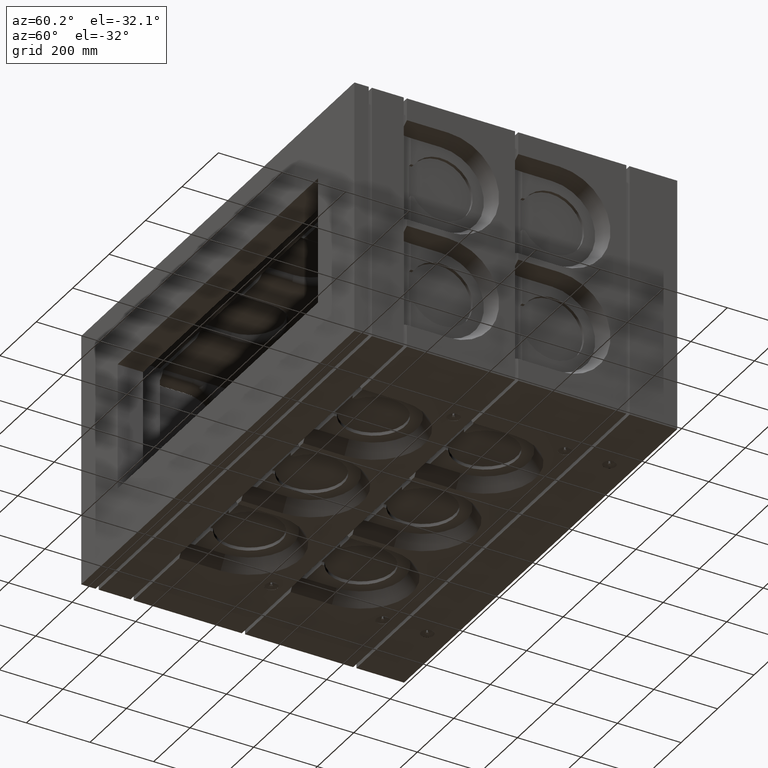
[diagram: clean part render]
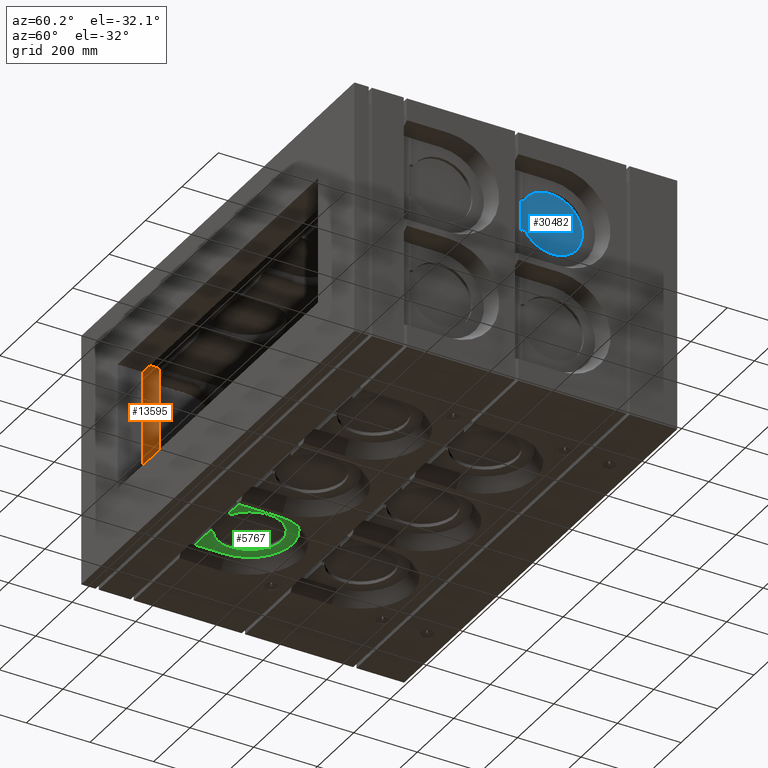
[diagram: same view with three faces highlighted in distinct colors, each labeled with its STEP entity id]
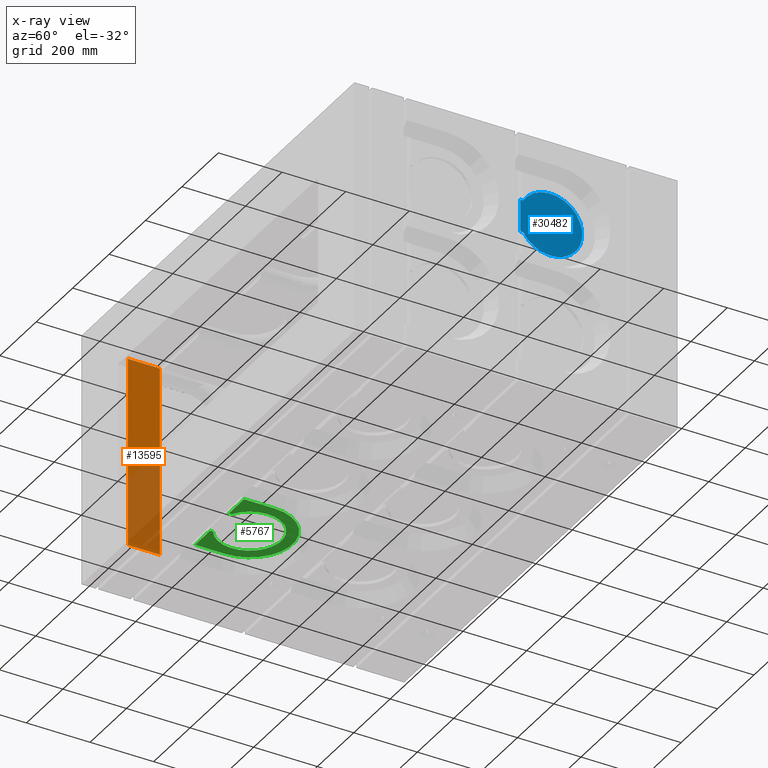
[diagram: x-ray of the same camera — body ghosted, the three highlighted faces saturated]
A machine part, auxiliary view with three faces highlighted in distinct colors.
The next image is the same camera in x-ray (body ghosted, the three faces saturated) — at least one of them is partly hidden behind the body in this view.
Their STEP definitions:

[orange] entity #13595 — the highlighted planar face has unit normal (-1, 0, 0).
#1005 = CARTESIAN_POINT ( 'NONE',  ( -650.0000000000000000, 54.99999999999987921, 300.0000000000000000 ) ) ;
#3785 = DIRECTION ( 'NONE',  ( -1.000000000000000000, 2.775557561562889872E-16, 2.312964634635742587E-17 ) ) ;
#4870 = DIRECTION ( 'NONE',  ( 2.312964634635742587E-17, -6.419766481290779791E-33, 1.000000000000000000 ) ) ;
#4960 = LINE ( 'NONE', #16539, #36735 ) ;
#5606 = VECTOR ( 'NONE', #24497, 1000.000000000000000 ) ;
#6989 = CARTESIAN_POINT ( 'NONE',  ( -650.0000000000000000, 54.99999999999987921, -300.0000000000000568 ) ) ;
#8268 = ORIENTED_EDGE ( 'NONE', *, *, #17706, .F. ) ;
#9534 = EDGE_CURVE ( 'NONE', #19221, #25099, #36899, .T. ) ;
#13595 = ADVANCED_FACE ( 'NONE', ( #26082 ), #33557, .F. ) ;
#14209 = VECTOR ( 'NONE', #32291, 1000.000000000000000 ) ;
#15676 = DIRECTION ( 'NONE',  ( 2.312964634635742587E-17, -6.419766481290779791E-33, 1.000000000000000000 ) ) ;
#16182 = DIRECTION ( 'NONE',  ( 1.665334536937735797E-16, 1.000000000000000000, 2.736911063134407734E-48 ) ) ;
#16289 = VERTEX_POINT ( 'NONE', #22287 ) ;
#16539 = CARTESIAN_POINT ( 'NONE',  ( -650.0000000000000000, 189.9999999999999147, 300.0000000000000000 ) ) ;
#17108 = ORIENTED_EDGE ( 'NONE', *, *, #27520, .T. ) ;
#17609 = CARTESIAN_POINT ( 'NONE',  ( -650.0000000000000000, 89.99999999999988631, 300.0000000000000000 ) ) ;
#17706 = EDGE_CURVE ( 'NONE', #16289, #19221, #22156, .T. ) ;
#17764 = AXIS2_PLACEMENT_3D ( 'NONE', #24816, #3785, #15676 ) ;
#19221 = VERTEX_POINT ( 'NONE', #17609 ) ;
#20887 = EDGE_LOOP ( 'NONE', ( #8268, #17108, #28598, #32962 ) ) ;
#21006 = LINE ( 'NONE', #6989, #5606 ) ;
#21134 = EDGE_CURVE ( 'NONE', #32428, #25099, #4960, .T. ) ;
#21414 = CARTESIAN_POINT ( 'NONE',  ( -650.0000000000000000, 189.9999999999999147, 300.0000000000000000 ) ) ;
#22156 = LINE ( 'NONE', #29915, #14209 ) ;
#22287 = CARTESIAN_POINT ( 'NONE',  ( -650.0000000000000000, 89.99999999999988631, -300.0000000000000568 ) ) ;
#24497 = DIRECTION ( 'NONE',  ( 1.665334536937735797E-16, 1.000000000000000000, 2.736911063134407734E-48 ) ) ;
#24816 = CARTESIAN_POINT ( 'NONE',  ( -650.0000000000000000, 54.99999999999987921, 300.0000000000000000 ) ) ;
#25099 = VERTEX_POINT ( 'NONE', #21414 ) ;
#26082 = FACE_OUTER_BOUND ( 'NONE', #20887, .T. ) ;
#26832 = CARTESIAN_POINT ( 'NONE',  ( -650.0000000000000000, 189.9999999999999147, -300.0000000000000568 ) ) ;
#27520 = EDGE_CURVE ( 'NONE', #16289, #32428, #21006, .T. ) ;
#28598 = ORIENTED_EDGE ( 'NONE', *, *, #21134, .T. ) ;
#28966 = VECTOR ( 'NONE', #16182, 1000.000000000000000 ) ;
#29915 = CARTESIAN_POINT ( 'NONE',  ( -650.0000000000000000, 89.99999999999988631, 300.0000000000000000 ) ) ;
#32291 = DIRECTION ( 'NONE',  ( 2.312964634635742587E-17, -6.419766481290779791E-33, 1.000000000000000000 ) ) ;
#32428 = VERTEX_POINT ( 'NONE', #26832 ) ;
#32962 = ORIENTED_EDGE ( 'NONE', *, *, #9534, .F. ) ;
#33557 = PLANE ( 'NONE',  #17764 ) ;
#36735 = VECTOR ( 'NONE', #4870, 1000.000000000000000 ) ;
#36899 = LINE ( 'NONE', #1005, #28966 ) ;

[blue] entity #30482 — the highlighted planar face has unit normal (1, 0, -0).
#76 = EDGE_CURVE ( 'NONE', #15147, #6648, #30307, .T. ) ;
#622 = CARTESIAN_POINT ( 'NONE',  ( 700.0000000000003411, 550.0000000000000000, 220.9999999999997442 ) ) ;
#3474 = ORIENTED_EDGE ( 'NONE', *, *, #16216, .F. ) ;
#3747 = VERTEX_POINT ( 'NONE', #24050 ) ;
#3801 = CARTESIAN_POINT ( 'NONE',  ( 700.0000000000003411, 645.0000000000000000, 169.9999999999998010 ) ) ;
#4112 = DIRECTION ( 'NONE',  ( 0.0000000000000000000, 0.0000000000000000000, 1.000000000000000000 ) ) ;
#5052 = LINE ( 'NONE', #27161, #35434 ) ;
#6057 = ORIENTED_EDGE ( 'NONE', *, *, #7861, .F. ) ;
#6648 = VERTEX_POINT ( 'NONE', #37586 ) ;
#7861 = EDGE_CURVE ( 'NONE', #6648, #3747, #5052, .T. ) ;
#8764 = EDGE_LOOP ( 'NONE', ( #18137, #6057, #29434, #3474 ) ) ;
#11061 = VERTEX_POINT ( 'NONE', #622 ) ;
#13063 = DIRECTION ( 'NONE',  ( 1.000000000000000000, 8.474091755303836385E-33, -1.734723475976807711E-17 ) ) ;
#14127 = AXIS2_PLACEMENT_3D ( 'NONE', #3801, #13063, #15958 ) ;
#15147 = VERTEX_POINT ( 'NONE', #23958 ) ;
#15726 = DIRECTION ( 'NONE',  ( -1.000000000000000000, -8.474091755303837753E-33, 1.734723475976808019E-17 ) ) ;
#15820 = PLANE ( 'NONE',  #14127 ) ;
#15958 = DIRECTION ( 'NONE',  ( 1.734723475976807711E-17, -4.996003610813204432E-16, 1.000000000000000000 ) ) ;
#16216 = EDGE_CURVE ( 'NONE', #11061, #15147, #32274, .T. ) ;
#16419 = VECTOR ( 'NONE', #22977, 1000.000000000000000 ) ;
#16918 = VECTOR ( 'NONE', #24658, 1000.000000000000000 ) ;
#18137 = ORIENTED_EDGE ( 'NONE', *, *, #24066, .T. ) ;
#18519 = AXIS2_PLACEMENT_3D ( 'NONE', #24595, #15726, #4112 ) ;
#21204 = FACE_OUTER_BOUND ( 'NONE', #8764, .T. ) ;
#22977 = DIRECTION ( 'NONE',  ( -1.734723475976807711E-17, 4.996003610813204432E-16, -1.000000000000000000 ) ) ;
#23958 = CARTESIAN_POINT ( 'NONE',  ( 700.0000000000003411, 558.9825599078884579, 220.9999999999997442 ) ) ;
#24050 = CARTESIAN_POINT ( 'NONE',  ( 700.0000000000003411, 550.0000000000001137, 118.9999999999997726 ) ) ;
#24066 = EDGE_CURVE ( 'NONE', #11061, #3747, #27590, .T. ) ;
#24595 = CARTESIAN_POINT ( 'NONE',  ( 700.0000000000003411, 645.0000000000000000, 169.9999999999998010 ) ) ;
#24658 = DIRECTION ( 'NONE',  ( -6.419766481290788001E-33, 1.000000000000000000, -9.251858538542972814E-17 ) ) ;
#25087 = CARTESIAN_POINT ( 'NONE',  ( 700.0000000000003411, 550.0000000000003411, -361.5000000000002274 ) ) ;
#25303 = DIRECTION ( 'NONE',  ( -1.881626355904905735E-48, -1.000000000000000000, -2.775557561562891351E-16 ) ) ;
#27161 = CARTESIAN_POINT ( 'NONE',  ( 700.0000000000003411, 558.9825599078885716, 118.9999999999997726 ) ) ;
#27590 = LINE ( 'NONE', #25087, #16419 ) ;
#29434 = ORIENTED_EDGE ( 'NONE', *, *, #76, .F. ) ;
#30307 = CIRCLE ( 'NONE', #18519, 100.0000000000000000 ) ;
#30482 = ADVANCED_FACE ( 'NONE', ( #21204 ), #15820, .T. ) ;
#32274 = LINE ( 'NONE', #33261, #16918 ) ;
#33261 = CARTESIAN_POINT ( 'NONE',  ( 700.0000000000003411, 558.9825599078884579, 220.9999999999997442 ) ) ;
#35434 = VECTOR ( 'NONE', #25303, 1000.000000000000000 ) ;
#37586 = CARTESIAN_POINT ( 'NONE',  ( 700.0000000000003411, 558.9825599078885716, 118.9999999999997726 ) ) ;

[green] entity #5767 — the highlighted planar face has unit normal (-0, 0, -1).
#246 = DIRECTION ( 'NONE',  ( 1.000000000000000000, 0.0000000000000000000, 0.0000000000000000000 ) ) ;
#307 = EDGE_CURVE ( 'NONE', #15800, #31874, #33073, .T. ) ;
#1085 = ORIENTED_EDGE ( 'NONE', *, *, #27112, .F. ) ;
#1590 = VERTEX_POINT ( 'NONE', #2297 ) ;
#2297 = CARTESIAN_POINT ( 'NONE',  ( -204.9947740763732327, 200.0000000000003695, -360.0000000000002842 ) ) ;
#2366 = CARTESIAN_POINT ( 'NONE',  ( -390.9999999999998863, 208.9825599078887706, -360.0000000000002842 ) ) ;
#2587 = ORIENTED_EDGE ( 'NONE', *, *, #32850, .T. ) ;
#2972 = VERTEX_POINT ( 'NONE', #38129 ) ;
#3058 = DIRECTION ( 'NONE',  ( -1.000000000000000000, -8.474091755303837753E-33, 1.734723475976808019E-17 ) ) ;
#3146 = CARTESIAN_POINT ( 'NONE',  ( -339.9999999999999432, 295.0000000000003979, -360.0000000000002842 ) ) ;
#3930 = LINE ( 'NONE', #19499, #29592 ) ;
#5039 = DIRECTION ( 'NONE',  ( -1.000000000000000000, -8.474091755303837753E-33, 1.734723475976808019E-17 ) ) ;
#5767 = ADVANCED_FACE ( 'NONE', ( #32176 ), #32630, .T. ) ;
#6093 = DIRECTION ( 'NONE',  ( -1.734723475976808019E-17, 4.996003610813204432E-16, -1.000000000000000000 ) ) ;
#7011 = LINE ( 'NONE', #17179, #15918 ) ;
#7023 = LINE ( 'NONE', #26186, #14035 ) ;
#7299 = DIRECTION ( 'NONE',  ( -4.440892098500626162E-16, 1.000000000000000000, 2.775557561562891351E-16 ) ) ;
#7989 = DIRECTION ( 'NONE',  ( -1.881626355904905735E-48, -1.000000000000000000, -2.775557561562891351E-16 ) ) ;
#8705 = VECTOR ( 'NONE', #37700, 1000.000000000000000 ) ;
#10338 = DIRECTION ( 'NONE',  ( -1.881626355904905735E-48, -1.000000000000000000, -2.775557561562891351E-16 ) ) ;
#10518 = CARTESIAN_POINT ( 'NONE',  ( 711.5000000000001137, 200.0000000000003695, -360.0000000000002842 ) ) ;
#10702 = CARTESIAN_POINT ( 'NONE',  ( -289.0000000000000568, 208.9825599078888274, -360.0000000000002842 ) ) ;
#10765 = ORIENTED_EDGE ( 'NONE', *, *, #15028, .T. ) ;
#11635 = VERTEX_POINT ( 'NONE', #26466 ) ;
#12274 = DIRECTION ( 'NONE',  ( 1.734723475976807711E-17, -4.996003610813204432E-16, 1.000000000000000000 ) ) ;
#13711 = CARTESIAN_POINT ( 'NONE',  ( -289.0000000000000568, 295.0000000000003979, -360.0000000000002842 ) ) ;
#14035 = VECTOR ( 'NONE', #5039, 1000.000000000000000 ) ;
#14159 = EDGE_CURVE ( 'NONE', #11635, #15800, #16725, .T. ) ;
#15028 = EDGE_CURVE ( 'NONE', #30621, #2972, #7023, .T. ) ;
#15145 = CARTESIAN_POINT ( 'NONE',  ( -339.9999999999999432, 295.0000000000003979, -360.0000000000002842 ) ) ;
#15448 = EDGE_CURVE ( 'NONE', #33900, #23855, #21680, .T. ) ;
#15800 = VERTEX_POINT ( 'NONE', #10702 ) ;
#15918 = VECTOR ( 'NONE', #7989, 1000.000000000000000 ) ;
#16725 = LINE ( 'NONE', #13711, #8705 ) ;
#17179 = CARTESIAN_POINT ( 'NONE',  ( -390.9999999999998863, 208.9825599078887706, -360.0000000000002842 ) ) ;
#18027 = EDGE_CURVE ( 'NONE', #23855, #2972, #3930, .T. ) ;
#19471 = EDGE_LOOP ( 'NONE', ( #37115, #21578, #10765, #34402, #34339, #1085, #2587, #33100 ) ) ;
#19499 = CARTESIAN_POINT ( 'NONE',  ( -475.0052259236269379, 295.0000000000003979, -360.0000000000002842 ) ) ;
#20465 = LINE ( 'NONE', #10518, #35837 ) ;
#20737 = AXIS2_PLACEMENT_3D ( 'NONE', #3146, #12274, #246 ) ;
#21578 = ORIENTED_EDGE ( 'NONE', *, *, #27635, .T. ) ;
#21680 = CIRCLE ( 'NONE', #23569, 135.0052259236268526 ) ;
#22321 = CARTESIAN_POINT ( 'NONE',  ( -390.9999999999998863, 200.0000000000003695, -360.0000000000002842 ) ) ;
#23569 = AXIS2_PLACEMENT_3D ( 'NONE', #37368, #34516, #28393 ) ;
#23855 = VERTEX_POINT ( 'NONE', #32259 ) ;
#26186 = CARTESIAN_POINT ( 'NONE',  ( 711.5000000000001137, 200.0000000000003695, -360.0000000000002842 ) ) ;
#26466 = CARTESIAN_POINT ( 'NONE',  ( -289.0000000000000568, 200.0000000000003695, -360.0000000000002842 ) ) ;
#27112 = EDGE_CURVE ( 'NONE', #1590, #33900, #37435, .T. ) ;
#27635 = EDGE_CURVE ( 'NONE', #31874, #30621, #7011, .T. ) ;
#28393 = DIRECTION ( 'NONE',  ( -1.000000000000000000, 0.0000000000000000000, 0.0000000000000000000 ) ) ;
#29592 = VECTOR ( 'NONE', #10338, 1000.000000000000000 ) ;
#29913 = CARTESIAN_POINT ( 'NONE',  ( -204.9947740763731190, 295.0000000000003979, -360.0000000000002842 ) ) ;
#30621 = VERTEX_POINT ( 'NONE', #22321 ) ;
#30946 = CARTESIAN_POINT ( 'NONE',  ( -204.9947740763732327, 295.0000000000004547, -360.0000000000002842 ) ) ;
#31408 = VECTOR ( 'NONE', #7299, 1000.000000000000000 ) ;
#31874 = VERTEX_POINT ( 'NONE', #2366 ) ;
#32176 = FACE_OUTER_BOUND ( 'NONE', #19471, .T. ) ;
#32259 = CARTESIAN_POINT ( 'NONE',  ( -475.0052259236269379, 295.0000000000003979, -360.0000000000002842 ) ) ;
#32630 = PLANE ( 'NONE',  #33992 ) ;
#32758 = DIRECTION ( 'NONE',  ( 1.000000000000000000, 8.474091755303837753E-33, -1.734723475976808019E-17 ) ) ;
#32850 = EDGE_CURVE ( 'NONE', #1590, #11635, #20465, .T. ) ;
#33073 = CIRCLE ( 'NONE', #20737, 100.0000000000000000 ) ;
#33100 = ORIENTED_EDGE ( 'NONE', *, *, #14159, .T. ) ;
#33900 = VERTEX_POINT ( 'NONE', #29913 ) ;
#33992 = AXIS2_PLACEMENT_3D ( 'NONE', #15145, #6093, #32758 ) ;
#34339 = ORIENTED_EDGE ( 'NONE', *, *, #15448, .F. ) ;
#34402 = ORIENTED_EDGE ( 'NONE', *, *, #18027, .F. ) ;
#34516 = DIRECTION ( 'NONE',  ( 1.734723475976807711E-17, -4.996003610813204432E-16, 1.000000000000000000 ) ) ;
#35837 = VECTOR ( 'NONE', #3058, 1000.000000000000000 ) ;
#37115 = ORIENTED_EDGE ( 'NONE', *, *, #307, .T. ) ;
#37368 = CARTESIAN_POINT ( 'NONE',  ( -339.9999999999999432, 295.0000000000003979, -360.0000000000002842 ) ) ;
#37435 = LINE ( 'NONE', #30946, #31408 ) ;
#37700 = DIRECTION ( 'NONE',  ( 1.881626355904905735E-48, 1.000000000000000000, 2.775557561562891351E-16 ) ) ;
#38129 = CARTESIAN_POINT ( 'NONE',  ( -475.0052259236269379, 200.0000000000003695, -360.0000000000002842 ) ) ;